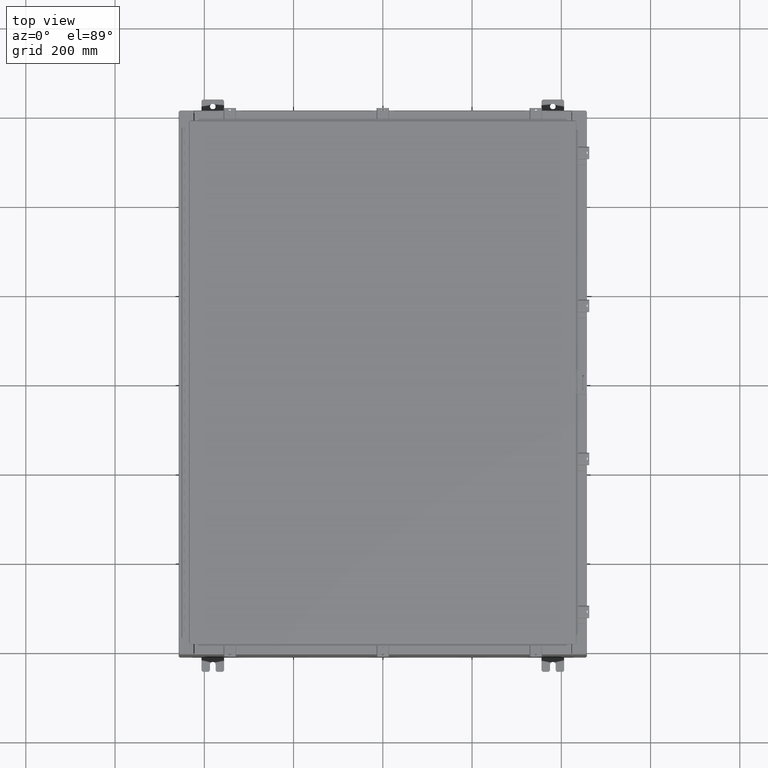
[diagram: clean part render]
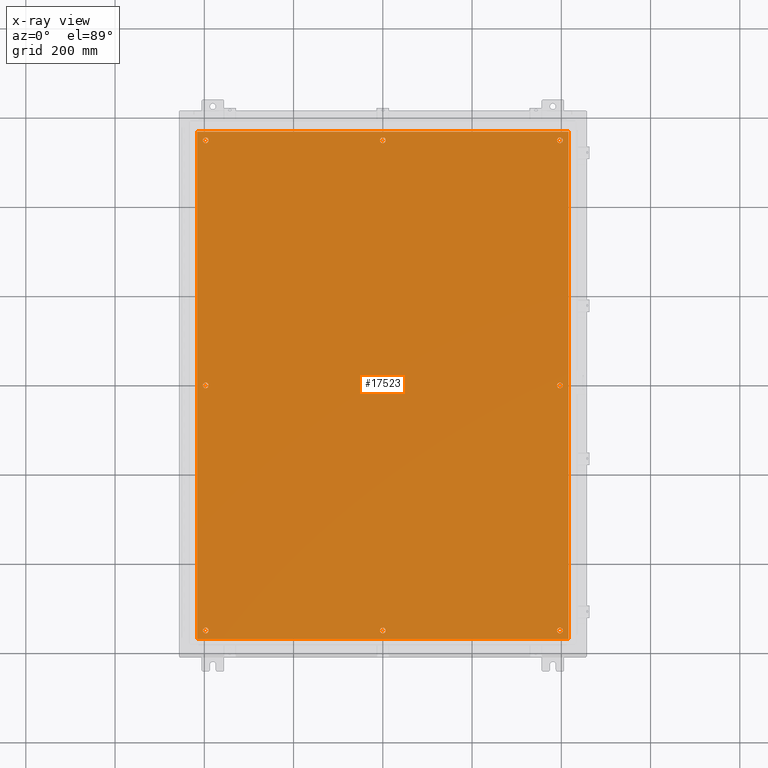
[diagram: x-ray — body ghosted, one internal face saturated and labeled with its STEP entity id]
A machine part, top view, then the same camera in x-ray: the body is ghosted and one INTERNAL B-rep face — a face not visible from any outside direction — is saturated and labeled: STEP entity #17523.
In plain terms, the highlighted planar face has unit normal (0, 0, -1).
Its self-contained STEP definition (entity closure, byte-faithful):
#1239 = AXIS2_PLACEMENT_3D ( 'NONE', #31404, #5751, #35689 ) ;
#1430 = EDGE_CURVE ( 'NONE', #2228, #12033, #28046, .T. ) ;
#1594 = CIRCLE ( 'NONE', #53245, 0.2499999999999987000 ) ;
#2228 = VERTEX_POINT ( 'NONE', #26241 ) ;
#2420 = DIRECTION ( 'NONE',  ( -1.000000000000000000, 0.0000000000000000000, 0.0000000000000000000 ) ) ;
#2473 = CARTESIAN_POINT ( 'NONE',  ( -15.87500000000000200, -21.62500000000000400, -0.1040000000000000400 ) ) ;
#2650 = CARTESIAN_POINT ( 'NONE',  ( 15.62500000000000400, 21.62500000000000400, -0.1040000000000000400 ) ) ;
#2838 = EDGE_LOOP ( 'NONE', ( #18246, #52939 ) ) ;
#2938 = DIRECTION ( 'NONE',  ( -1.000000000000000000, 0.0000000000000000000, 0.0000000000000000000 ) ) ;
#3200 = DIRECTION ( 'NONE',  ( -0.0000000000000000000, -0.0000000000000000000, 1.000000000000000000 ) ) ;
#3395 = DIRECTION ( 'NONE',  ( -0.0000000000000000000, -0.0000000000000000000, 1.000000000000000000 ) ) ;
#3614 = CARTESIAN_POINT ( 'NONE',  ( 0.0000000000000000000, 0.0000000000000000000, -0.1040000000000000400 ) ) ;
#3804 = DIRECTION ( 'NONE',  ( -1.000000000000000000, 0.0000000000000000000, 0.0000000000000000000 ) ) ;
#4324 = VERTEX_POINT ( 'NONE', #34188 ) ;
#4493 = FACE_BOUND ( 'NONE', #22916, .T. ) ;
#4697 = ORIENTED_EDGE ( 'NONE', *, *, #12616, .T. ) ;
#4719 = CARTESIAN_POINT ( 'NONE',  ( 15.37500000000000500, -21.62500000000000400, -0.1040000000000000400 ) ) ;
#4838 = CARTESIAN_POINT ( 'NONE',  ( 0.0000000000000000000, 21.62500000000000400, -0.1040000000000000400 ) ) ;
#4905 = CARTESIAN_POINT ( 'NONE',  ( 15.62500000000000400, -21.62500000000000400, -0.1040000000000000400 ) ) ;
#4976 = VERTEX_POINT ( 'NONE', #4719 ) ;
#5168 = VERTEX_POINT ( 'NONE', #52748 ) ;
#5375 = LINE ( 'NONE', #48031, #15424 ) ;
#5432 = CIRCLE ( 'NONE', #34660, 0.2500000000000011700 ) ;
#5751 = DIRECTION ( 'NONE',  ( -0.0000000000000000000, -0.0000000000000000000, 1.000000000000000000 ) ) ;
#5874 = FACE_BOUND ( 'NONE', #16650, .T. ) ;
#6816 = CARTESIAN_POINT ( 'NONE',  ( 0.0000000000000000000, -21.62500000000000400, -0.1040000000000000400 ) ) ;
#6853 = CARTESIAN_POINT ( 'NONE',  ( -15.62500000000000400, -21.62500000000000400, -0.1040000000000000400 ) ) ;
#6944 = DIRECTION ( 'NONE',  ( -1.000000000000000000, 0.0000000000000000000, 0.0000000000000000000 ) ) ;
#7022 = AXIS2_PLACEMENT_3D ( 'NONE', #29035, #3395, #33358 ) ;
#7144 = VERTEX_POINT ( 'NONE', #27213 ) ;
#7156 = EDGE_CURVE ( 'NONE', #33036, #23593, #5432, .T. ) ;
#7197 = FACE_BOUND ( 'NONE', #13469, .T. ) ;
#7248 = ORIENTED_EDGE ( 'NONE', *, *, #20036, .T. ) ;
#7663 = EDGE_CURVE ( 'NONE', #39810, #5168, #5375, .T. ) ;
#7704 = VECTOR ( 'NONE', #18821, 39.37007874015748100 ) ;
#7981 = AXIS2_PLACEMENT_3D ( 'NONE', #45368, #19787, #49643 ) ;
#8108 = EDGE_LOOP ( 'NONE', ( #46102, #13985, #11730, #11095 ) ) ;
#8197 = CIRCLE ( 'NONE', #37153, 0.2499999999999987000 ) ;
#9121 = DIRECTION ( 'NONE',  ( -1.000000000000000000, 0.0000000000000000000, 0.0000000000000000000 ) ) ;
#9181 = DIRECTION ( 'NONE',  ( -1.000000000000000000, 0.0000000000000000000, 0.0000000000000000000 ) ) ;
#9675 = EDGE_CURVE ( 'NONE', #25138, #26865, #44727, .T. ) ;
#10013 = CARTESIAN_POINT ( 'NONE',  ( -16.49999999999999600, -22.38300000000000300, -0.1040000000000009900 ) ) ;
#10214 = CIRCLE ( 'NONE', #44129, 0.2500000000000008900 ) ;
#10363 = CARTESIAN_POINT ( 'NONE',  ( -16.38299999999999600, 22.38300000000000300, -0.1040000000000008600 ) ) ;
#10411 = CARTESIAN_POINT ( 'NONE',  ( 15.62500000000000400, -21.62500000000000400, -0.1040000000000000400 ) ) ;
#10792 = DIRECTION ( 'NONE',  ( -0.0000000000000000000, -0.0000000000000000000, 1.000000000000000000 ) ) ;
#10846 = CARTESIAN_POINT ( 'NONE',  ( -16.38299999999999600, -22.38300000000000300, -0.1040000000000009900 ) ) ;
#11095 = ORIENTED_EDGE ( 'NONE', *, *, #7663, .F. ) ;
#11099 = DIRECTION ( 'NONE',  ( -1.000000000000000000, 0.0000000000000000000, 0.0000000000000000000 ) ) ;
#11133 = DIRECTION ( 'NONE',  ( -1.000000000000000000, 0.0000000000000000000, 0.0000000000000000000 ) ) ;
#11180 = ORIENTED_EDGE ( 'NONE', *, *, #18230, .T. ) ;
#11291 = EDGE_CURVE ( 'NONE', #45554, #26458, #10214, .T. ) ;
#11730 = ORIENTED_EDGE ( 'NONE', *, *, #22614, .F. ) ;
#12033 = VERTEX_POINT ( 'NONE', #22817 ) ;
#12145 = CARTESIAN_POINT ( 'NONE',  ( 15.37500000000000000, 3.027752532102204900E-015, -0.1040000000000000400 ) ) ;
#12218 = DIRECTION ( 'NONE',  ( -1.000000000000000000, 0.0000000000000000000, -0.0000000000000000000 ) ) ;
#12398 = VECTOR ( 'NONE', #26898, 39.37007874015748100 ) ;
#12616 = EDGE_CURVE ( 'NONE', #26865, #25138, #26860, .T. ) ;
#13469 = EDGE_LOOP ( 'NONE', ( #45692, #49438 ) ) ;
#13586 = LINE ( 'NONE', #28814, #23631 ) ;
#13985 = ORIENTED_EDGE ( 'NONE', *, *, #55088, .F. ) ;
#14469 = DIRECTION ( 'NONE',  ( -0.0000000000000000000, -0.0000000000000000000, 1.000000000000000000 ) ) ;
#14725 = CARTESIAN_POINT ( 'NONE',  ( -15.62500000000000400, -21.62500000000000400, -0.1040000000000000400 ) ) ;
#14735 = DIRECTION ( 'NONE',  ( -1.000000000000000000, 0.0000000000000000000, 0.0000000000000000000 ) ) ;
#15079 = CIRCLE ( 'NONE', #46001, 0.2500000000000011700 ) ;
#15424 = VECTOR ( 'NONE', #22456, 39.37007874015748100 ) ;
#15918 = FACE_BOUND ( 'NONE', #19587, .T. ) ;
#16432 = VERTEX_POINT ( 'NONE', #52721 ) ;
#16487 = EDGE_CURVE ( 'NONE', #16988, #51002, #47023, .T. ) ;
#16650 = EDGE_LOOP ( 'NONE', ( #40104, #11180 ) ) ;
#16988 = VERTEX_POINT ( 'NONE', #25397 ) ;
#17523 = ADVANCED_FACE ( 'NONE', ( #28623, #7197, #5874, #50001, #38627, #27312, #15918, #4493, #48680 ), #50548, .T. ) ;
#17630 = AXIS2_PLACEMENT_3D ( 'NONE', #4838, #34803, #9121 ) ;
#18230 = EDGE_CURVE ( 'NONE', #26458, #45554, #40578, .T. ) ;
#18246 = ORIENTED_EDGE ( 'NONE', *, *, #49909, .T. ) ;
#18710 = CIRCLE ( 'NONE', #1239, 0.2499999999999987000 ) ;
#18821 = DIRECTION ( 'NONE',  ( 0.0000000000000000000, -1.000000000000000000, 0.0000000000000000000 ) ) ;
#19032 = DIRECTION ( 'NONE',  ( -1.000000000000000000, 0.0000000000000000000, 0.0000000000000000000 ) ) ;
#19578 = ORIENTED_EDGE ( 'NONE', *, *, #9675, .T. ) ;
#19587 = EDGE_LOOP ( 'NONE', ( #30948, #36184 ) ) ;
#19787 = DIRECTION ( 'NONE',  ( -0.0000000000000000000, -0.0000000000000000000, 1.000000000000000000 ) ) ;
#20036 = EDGE_CURVE ( 'NONE', #4976, #33767, #1594, .T. ) ;
#20295 = VERTEX_POINT ( 'NONE', #2473 ) ;
#20334 = EDGE_CURVE ( 'NONE', #4324, #7144, #8197, .T. ) ;
#21289 = CARTESIAN_POINT ( 'NONE',  ( 16.38300000000000600, -22.38300000000000300, -0.1040000000000008600 ) ) ;
#22017 = AXIS2_PLACEMENT_3D ( 'NONE', #54114, #28568, #2938 ) ;
#22456 = DIRECTION ( 'NONE',  ( 0.0000000000000000000, 1.000000000000000000, 0.0000000000000000000 ) ) ;
#22614 = EDGE_CURVE ( 'NONE', #5168, #16432, #13586, .T. ) ;
#22817 = CARTESIAN_POINT ( 'NONE',  ( -15.87500000000000200, -7.992687152332741600E-016, -0.1040000000000000400 ) ) ;
#22916 = EDGE_LOOP ( 'NONE', ( #4697, #19578 ) ) ;
#23593 = VERTEX_POINT ( 'NONE', #37815 ) ;
#23631 = VECTOR ( 'NONE', #37405, 39.37007874015748100 ) ;
#24225 = CIRCLE ( 'NONE', #29815, 0.2499999999999987000 ) ;
#24533 = AXIS2_PLACEMENT_3D ( 'NONE', #28837, #3200, #33164 ) ;
#25138 = VERTEX_POINT ( 'NONE', #27293 ) ;
#25297 = EDGE_CURVE ( 'NONE', #12033, #2228, #45034, .T. ) ;
#25397 = CARTESIAN_POINT ( 'NONE',  ( -0.2499999999999998600, 21.62500000000000400, -0.1040000000000000400 ) ) ;
#26241 = CARTESIAN_POINT ( 'NONE',  ( -15.37500000000000000, -8.298848852119578500E-016, -0.1040000000000000400 ) ) ;
#26458 = VERTEX_POINT ( 'NONE', #12145 ) ;
#26771 = EDGE_CURVE ( 'NONE', #33767, #4976, #36211, .T. ) ;
#26860 = CIRCLE ( 'NONE', #35984, 0.2500000000000008900 ) ;
#26865 = VERTEX_POINT ( 'NONE', #41073 ) ;
#26898 = DIRECTION ( 'NONE',  ( 1.000000000000000000, -0.0000000000000000000, -0.0000000000000000000 ) ) ;
#27213 = CARTESIAN_POINT ( 'NONE',  ( 15.87500000000000200, 21.62500000000000400, -0.1040000000000000400 ) ) ;
#27254 = ORIENTED_EDGE ( 'NONE', *, *, #1430, .T. ) ;
#27293 = CARTESIAN_POINT ( 'NONE',  ( -15.87500000000000700, 21.62500000000000400, -0.1040000000000000400 ) ) ;
#27312 = FACE_BOUND ( 'NONE', #36287, .T. ) ;
#28044 = DIRECTION ( 'NONE',  ( -0.0000000000000000000, -0.0000000000000000000, 1.000000000000000000 ) ) ;
#28046 = CIRCLE ( 'NONE', #22017, 0.2500000000000008900 ) ;
#28568 = DIRECTION ( 'NONE',  ( -0.0000000000000000000, -0.0000000000000000000, 1.000000000000000000 ) ) ;
#28623 = FACE_BOUND ( 'NONE', #53523, .T. ) ;
#28814 = CARTESIAN_POINT ( 'NONE',  ( 16.50000000000000700, 22.38300000000000300, -0.1040000000000009900 ) ) ;
#28837 = CARTESIAN_POINT ( 'NONE',  ( 15.62500000000000200, 2.997136362123521200E-015, -0.1040000000000000400 ) ) ;
#29035 = CARTESIAN_POINT ( 'NONE',  ( 0.0000000000000000000, 21.62500000000000400, -0.1040000000000000400 ) ) ;
#29452 = DIRECTION ( 'NONE',  ( -0.0000000000000000000, -0.0000000000000000000, 1.000000000000000000 ) ) ;
#29815 = AXIS2_PLACEMENT_3D ( 'NONE', #6853, #36780, #11133 ) ;
#30493 = LINE ( 'NONE', #10363, #7704 ) ;
#30948 = ORIENTED_EDGE ( 'NONE', *, *, #51517, .T. ) ;
#31404 = CARTESIAN_POINT ( 'NONE',  ( 15.62500000000000400, 21.62500000000000400, -0.1040000000000000400 ) ) ;
#32594 = DIRECTION ( 'NONE',  ( -0.0000000000000000000, -0.0000000000000000000, 1.000000000000000000 ) ) ;
#33036 = VERTEX_POINT ( 'NONE', #41773 ) ;
#33164 = DIRECTION ( 'NONE',  ( -1.000000000000000000, 0.0000000000000000000, 0.0000000000000000000 ) ) ;
#33358 = DIRECTION ( 'NONE',  ( -1.000000000000000000, 0.0000000000000000000, 0.0000000000000000000 ) ) ;
#33767 = VERTEX_POINT ( 'NONE', #45606 ) ;
#34188 = CARTESIAN_POINT ( 'NONE',  ( 15.37500000000000500, 21.62500000000000400, -0.1040000000000000400 ) ) ;
#34236 = AXIS2_PLACEMENT_3D ( 'NONE', #14725, #44632, #19032 ) ;
#34660 = AXIS2_PLACEMENT_3D ( 'NONE', #40070, #14469, #44366 ) ;
#34803 = DIRECTION ( 'NONE',  ( -0.0000000000000000000, -0.0000000000000000000, 1.000000000000000000 ) ) ;
#34861 = DIRECTION ( 'NONE',  ( -0.0000000000000000000, -0.0000000000000000000, 1.000000000000000000 ) ) ;
#34948 = CARTESIAN_POINT ( 'NONE',  ( -15.37500000000000500, -21.62500000000000400, -0.1040000000000000400 ) ) ;
#35170 = LINE ( 'NONE', #10013, #12398 ) ;
#35689 = DIRECTION ( 'NONE',  ( -1.000000000000000000, 0.0000000000000000000, 0.0000000000000000000 ) ) ;
#35984 = AXIS2_PLACEMENT_3D ( 'NONE', #53596, #28044, #2420 ) ;
#36184 = ORIENTED_EDGE ( 'NONE', *, *, #20334, .T. ) ;
#36211 = CIRCLE ( 'NONE', #45680, 0.2499999999999987000 ) ;
#36287 = EDGE_LOOP ( 'NONE', ( #50557, #7248 ) ) ;
#36318 = AXIS2_PLACEMENT_3D ( 'NONE', #3614, #37833, #12218 ) ;
#36471 = CARTESIAN_POINT ( 'NONE',  ( -15.62500000000000500, 21.62500000000000400, -0.1040000000000000400 ) ) ;
#36736 = DIRECTION ( 'NONE',  ( -0.0000000000000000000, -0.0000000000000000000, 1.000000000000000000 ) ) ;
#36780 = DIRECTION ( 'NONE',  ( -0.0000000000000000000, -0.0000000000000000000, 1.000000000000000000 ) ) ;
#37153 = AXIS2_PLACEMENT_3D ( 'NONE', #2650, #32594, #6944 ) ;
#37405 = DIRECTION ( 'NONE',  ( -1.000000000000000000, -0.0000000000000000000, -0.0000000000000000000 ) ) ;
#37815 = CARTESIAN_POINT ( 'NONE',  ( 0.2500000000000011700, -21.62500000000000400, -0.1040000000000000400 ) ) ;
#37833 = DIRECTION ( 'NONE',  ( 0.0000000000000000000, 0.0000000000000000000, -1.000000000000000000 ) ) ;
#38627 = FACE_BOUND ( 'NONE', #2838, .T. ) ;
#39810 = VERTEX_POINT ( 'NONE', #21289 ) ;
#40070 = CARTESIAN_POINT ( 'NONE',  ( 0.0000000000000000000, -21.62500000000000400, -0.1040000000000000400 ) ) ;
#40104 = ORIENTED_EDGE ( 'NONE', *, *, #11291, .T. ) ;
#40210 = CARTESIAN_POINT ( 'NONE',  ( 0.2499999999999998600, 21.62500000000000400, -0.1040000000000000400 ) ) ;
#40347 = DIRECTION ( 'NONE',  ( -0.0000000000000000000, -0.0000000000000000000, 1.000000000000000000 ) ) ;
#40578 = CIRCLE ( 'NONE', #24533, 0.2500000000000008900 ) ;
#40750 = DIRECTION ( 'NONE',  ( -1.000000000000000000, 0.0000000000000000000, 0.0000000000000000000 ) ) ;
#41073 = CARTESIAN_POINT ( 'NONE',  ( -15.37500000000000500, 21.62500000000000400, -0.1040000000000000400 ) ) ;
#41773 = CARTESIAN_POINT ( 'NONE',  ( -0.2500000000000011700, -21.62500000000000400, -0.1040000000000000400 ) ) ;
#43637 = VERTEX_POINT ( 'NONE', #10846 ) ;
#43971 = CIRCLE ( 'NONE', #34236, 0.2499999999999987000 ) ;
#44129 = AXIS2_PLACEMENT_3D ( 'NONE', #54992, #29452, #3804 ) ;
#44366 = DIRECTION ( 'NONE',  ( -1.000000000000000000, 0.0000000000000000000, 0.0000000000000000000 ) ) ;
#44465 = CARTESIAN_POINT ( 'NONE',  ( 15.87500000000000200, 2.997136362123521200E-015, -0.1040000000000000400 ) ) ;
#44632 = DIRECTION ( 'NONE',  ( -0.0000000000000000000, -0.0000000000000000000, 1.000000000000000000 ) ) ;
#44727 = CIRCLE ( 'NONE', #53366, 0.2500000000000008900 ) ;
#45034 = CIRCLE ( 'NONE', #7981, 0.2500000000000008900 ) ;
#45368 = CARTESIAN_POINT ( 'NONE',  ( -15.62500000000000200, -8.298848852119578500E-016, -0.1040000000000000400 ) ) ;
#45554 = VERTEX_POINT ( 'NONE', #44465 ) ;
#45606 = CARTESIAN_POINT ( 'NONE',  ( 15.87500000000000200, -21.62500000000000400, -0.1040000000000000400 ) ) ;
#45680 = AXIS2_PLACEMENT_3D ( 'NONE', #10411, #40347, #14735 ) ;
#45692 = ORIENTED_EDGE ( 'NONE', *, *, #53577, .T. ) ;
#45916 = CIRCLE ( 'NONE', #7022, 0.2499999999999998600 ) ;
#46001 = AXIS2_PLACEMENT_3D ( 'NONE', #6816, #36736, #11099 ) ;
#46102 = ORIENTED_EDGE ( 'NONE', *, *, #47828, .F. ) ;
#47023 = CIRCLE ( 'NONE', #17630, 0.2499999999999998600 ) ;
#47828 = EDGE_CURVE ( 'NONE', #43637, #39810, #35170, .T. ) ;
#48031 = CARTESIAN_POINT ( 'NONE',  ( 16.38300000000000600, -22.38300000000000300, -0.1040000000000008600 ) ) ;
#48680 = FACE_OUTER_BOUND ( 'NONE', #8108, .T. ) ;
#49438 = ORIENTED_EDGE ( 'NONE', *, *, #16487, .T. ) ;
#49627 = VERTEX_POINT ( 'NONE', #34948 ) ;
#49643 = DIRECTION ( 'NONE',  ( -1.000000000000000000, 0.0000000000000000000, 0.0000000000000000000 ) ) ;
#49909 = EDGE_CURVE ( 'NONE', #49627, #20295, #24225, .T. ) ;
#50001 = FACE_BOUND ( 'NONE', #50787, .T. ) ;
#50548 = PLANE ( 'NONE',  #36318 ) ;
#50557 = ORIENTED_EDGE ( 'NONE', *, *, #26771, .T. ) ;
#50787 = EDGE_LOOP ( 'NONE', ( #27254, #51019 ) ) ;
#50891 = ORIENTED_EDGE ( 'NONE', *, *, #55181, .T. ) ;
#51002 = VERTEX_POINT ( 'NONE', #40210 ) ;
#51019 = ORIENTED_EDGE ( 'NONE', *, *, #25297, .T. ) ;
#51517 = EDGE_CURVE ( 'NONE', #7144, #4324, #18710, .T. ) ;
#52721 = CARTESIAN_POINT ( 'NONE',  ( -16.38299999999999600, 22.38300000000000300, -0.1040000000000008600 ) ) ;
#52748 = CARTESIAN_POINT ( 'NONE',  ( 16.38300000000000600, 22.38300000000000300, -0.1040000000000008600 ) ) ;
#52850 = EDGE_CURVE ( 'NONE', #20295, #49627, #43971, .T. ) ;
#52939 = ORIENTED_EDGE ( 'NONE', *, *, #52850, .T. ) ;
#53245 = AXIS2_PLACEMENT_3D ( 'NONE', #4905, #34861, #9181 ) ;
#53366 = AXIS2_PLACEMENT_3D ( 'NONE', #36471, #10792, #40750 ) ;
#53523 = EDGE_LOOP ( 'NONE', ( #50891, #53553 ) ) ;
#53553 = ORIENTED_EDGE ( 'NONE', *, *, #7156, .T. ) ;
#53577 = EDGE_CURVE ( 'NONE', #51002, #16988, #45916, .T. ) ;
#53596 = CARTESIAN_POINT ( 'NONE',  ( -15.62500000000000500, 21.62500000000000400, -0.1040000000000000400 ) ) ;
#54114 = CARTESIAN_POINT ( 'NONE',  ( -15.62500000000000200, -8.298848852119578500E-016, -0.1040000000000000400 ) ) ;
#54992 = CARTESIAN_POINT ( 'NONE',  ( 15.62500000000000200, 2.997136362123521200E-015, -0.1040000000000000400 ) ) ;
#55088 = EDGE_CURVE ( 'NONE', #16432, #43637, #30493, .T. ) ;
#55181 = EDGE_CURVE ( 'NONE', #23593, #33036, #15079, .T. ) ;